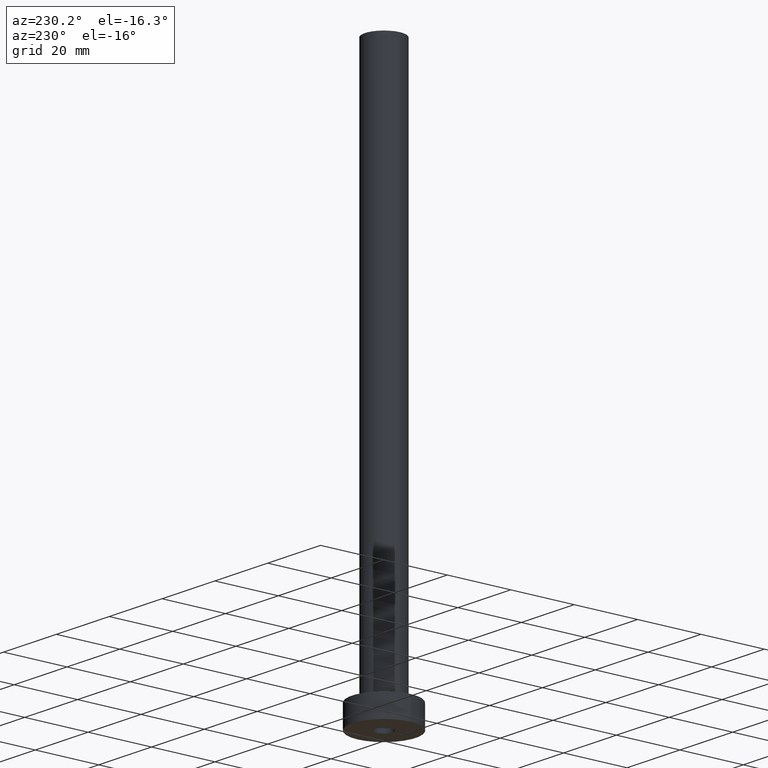
[diagram: clean part render]
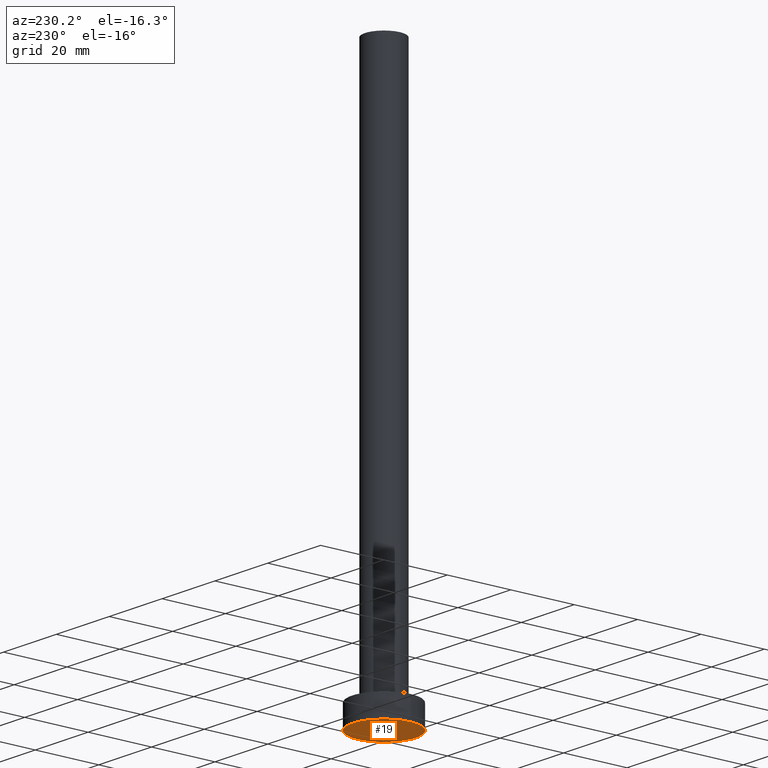
[diagram: same view with one face highlighted and labeled with its STEP entity id]
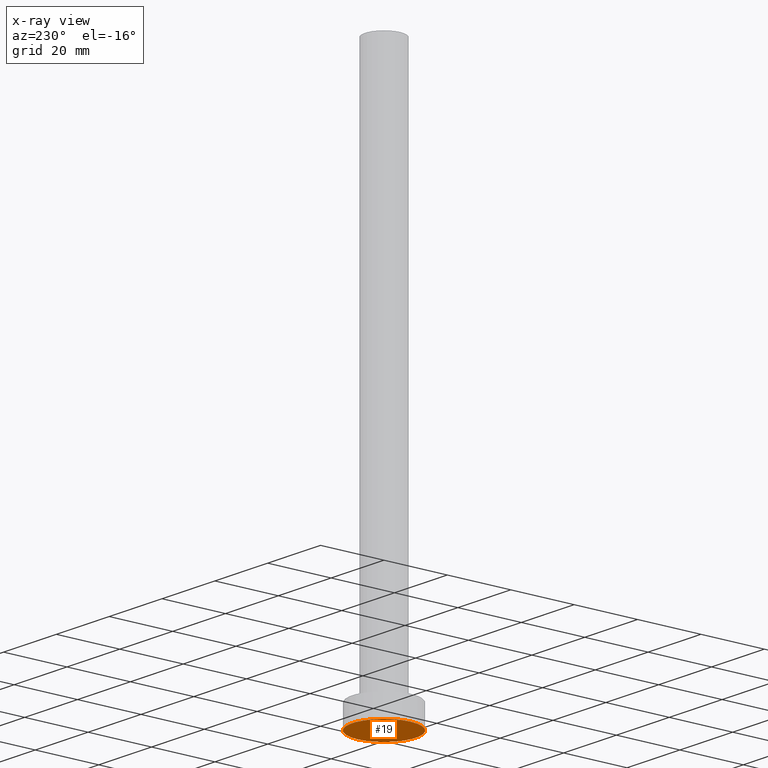
[diagram: x-ray of the same camera — body ghosted, the highlighted face saturated]
A machine part, auxiliary view. The second image highlights one B-rep face of the part: STEP entity #19.
The next image is the same camera in x-ray: the body ghosted, the highlighted face saturated — about 0% of this face is hidden behind the body in this view.
In plain terms, the highlighted planar face has unit normal (0, 0, 1).
Its self-contained STEP definition (entity closure, byte-faithful):
#16 = EDGE_CURVE ( 'NONE', #222, #292, #304, .T. ) ;
#19 = ADVANCED_FACE ( 'NONE', ( #410, #415 ), #383, .F. ) ;
#22 = AXIS2_PLACEMENT_3D ( 'NONE', #318, #376, #209 ) ;
#23 = CIRCLE ( 'NONE', #235, 10.00000000000000000 ) ;
#30 = CARTESIAN_POINT ( 'NONE',  ( 0.000000000000000000, 0.000000000000000000, 0.000000000000000000 ) ) ;
#35 = EDGE_CURVE ( 'NONE', #367, #357, #162, .T. ) ;
#42 = CARTESIAN_POINT ( 'NONE',  ( 0.000000000000000000, 0.000000000000000000, 0.000000000000000000 ) ) ;
#56 = DIRECTION ( 'NONE',  ( 0.000000000000000000, 0.000000000000000000, 1.000000000000000000 ) ) ;
#69 = DIRECTION ( 'NONE',  ( 0.000000000000000000, 0.000000000000000000, 1.000000000000000000 ) ) ;
#73 = AXIS2_PLACEMENT_3D ( 'NONE', #30, #244, #216 ) ;
#103 = EDGE_CURVE ( 'NONE', #357, #367, #23, .T. ) ;
#105 = CARTESIAN_POINT ( 'NONE',  ( 0.000000000000000000, 0.000000000000000000, 0.000000000000000000 ) ) ;
#107 = AXIS2_PLACEMENT_3D ( 'NONE', #105, #69, #352 ) ;
#127 = ORIENTED_EDGE ( 'NONE', *, *, #35, .F. ) ;
#141 = CARTESIAN_POINT ( 'NONE',  ( -2.649999999999999911, 0.000000000000000000, 0.000000000000000000 ) ) ;
#156 = CARTESIAN_POINT ( 'NONE',  ( 2.649999999999999911, 3.245314017740485962E-16, 0.000000000000000000 ) ) ;
#162 = CIRCLE ( 'NONE', #22, 10.00000000000000000 ) ;
#179 = ORIENTED_EDGE ( 'NONE', *, *, #346, .F. ) ;
#189 = CIRCLE ( 'NONE', #412, 2.649999999999999911 ) ;
#193 = EDGE_LOOP ( 'NONE', ( #234, #127 ) ) ;
#200 = CARTESIAN_POINT ( 'NONE',  ( 0.000000000000000000, 0.000000000000000000, 0.000000000000000000 ) ) ;
#206 = DIRECTION ( 'NONE',  ( 1.000000000000000000, 0.000000000000000000, 0.000000000000000000 ) ) ;
#209 = DIRECTION ( 'NONE',  ( 1.000000000000000000, 0.000000000000000000, 0.000000000000000000 ) ) ;
#216 = DIRECTION ( 'NONE',  ( 1.000000000000000000, 0.000000000000000000, 0.000000000000000000 ) ) ;
#222 = VERTEX_POINT ( 'NONE', #156 ) ;
#234 = ORIENTED_EDGE ( 'NONE', *, *, #103, .F. ) ;
#235 = AXIS2_PLACEMENT_3D ( 'NONE', #42, #56, #441 ) ;
#244 = DIRECTION ( 'NONE',  ( -0.000000000000000000, -0.000000000000000000, -1.000000000000000000 ) ) ;
#256 = EDGE_LOOP ( 'NONE', ( #179, #393 ) ) ;
#292 = VERTEX_POINT ( 'NONE', #141 ) ;
#304 = CIRCLE ( 'NONE', #73, 2.649999999999999911 ) ;
#308 = CARTESIAN_POINT ( 'NONE',  ( -10.00000000000000000, 0.000000000000000000, 0.000000000000000000 ) ) ;
#318 = CARTESIAN_POINT ( 'NONE',  ( 0.000000000000000000, 0.000000000000000000, 0.000000000000000000 ) ) ;
#346 = EDGE_CURVE ( 'NONE', #292, #222, #189, .T. ) ;
#348 = CARTESIAN_POINT ( 'NONE',  ( 10.00000000000000000, 1.224646799147353256E-15, 0.000000000000000000 ) ) ;
#351 = DIRECTION ( 'NONE',  ( -0.000000000000000000, -0.000000000000000000, -1.000000000000000000 ) ) ;
#352 = DIRECTION ( 'NONE',  ( 1.000000000000000000, 0.000000000000000000, -0.000000000000000000 ) ) ;
#357 = VERTEX_POINT ( 'NONE', #308 ) ;
#367 = VERTEX_POINT ( 'NONE', #348 ) ;
#376 = DIRECTION ( 'NONE',  ( 0.000000000000000000, 0.000000000000000000, 1.000000000000000000 ) ) ;
#383 = PLANE ( 'NONE',  #107 ) ;
#393 = ORIENTED_EDGE ( 'NONE', *, *, #16, .F. ) ;
#410 = FACE_BOUND ( 'NONE', #256, .T. ) ;
#412 = AXIS2_PLACEMENT_3D ( 'NONE', #200, #351, #206 ) ;
#415 = FACE_OUTER_BOUND ( 'NONE', #193, .T. ) ;
#441 = DIRECTION ( 'NONE',  ( 1.000000000000000000, 0.000000000000000000, 0.000000000000000000 ) ) ;